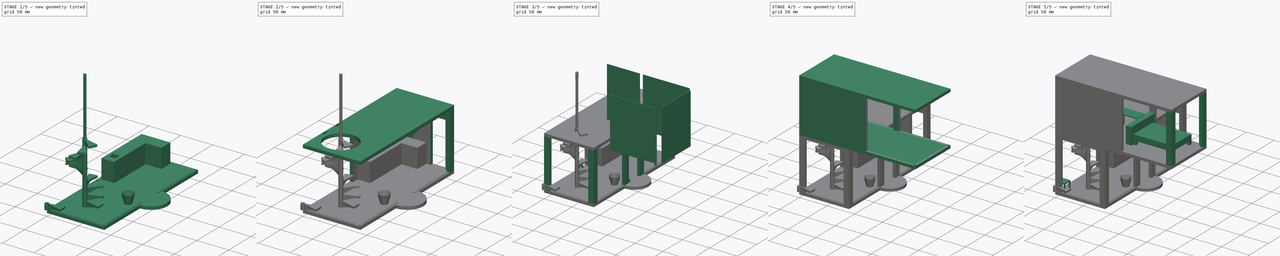
[diagram: build sequence overview — one tinted view per stage of 5, left to right]
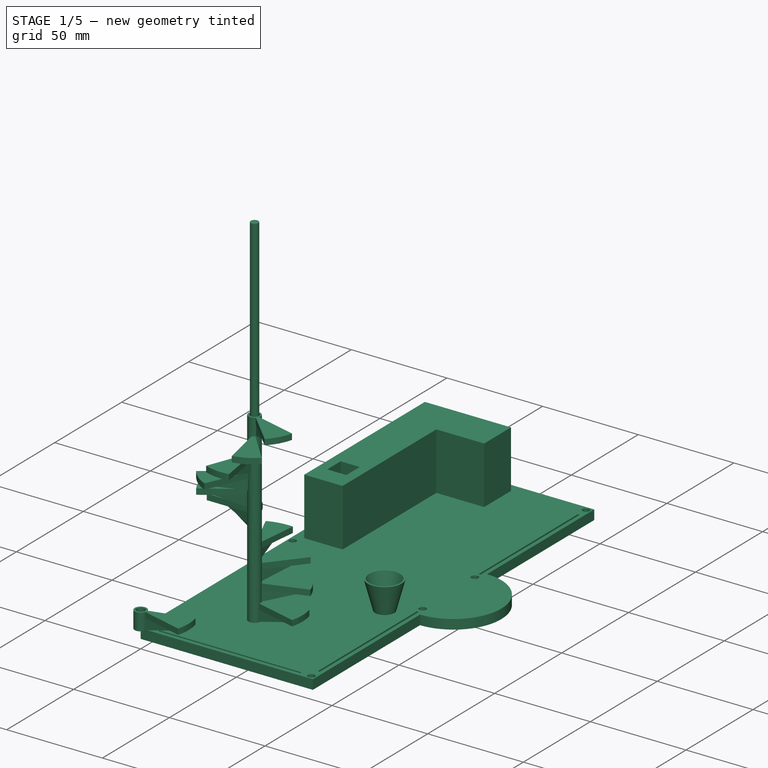
[diagram: stage 1 of 5 — iso view after this stage's code; geometry added in this stage tinted green]
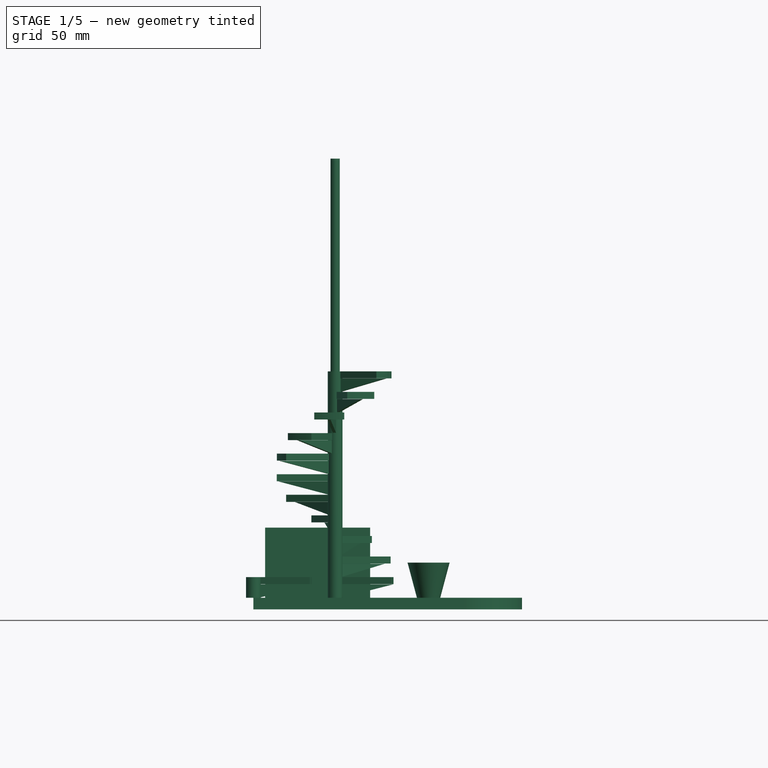
[diagram: stage 1 of 5 — front view after this stage's code; geometry added in this stage tinted green]
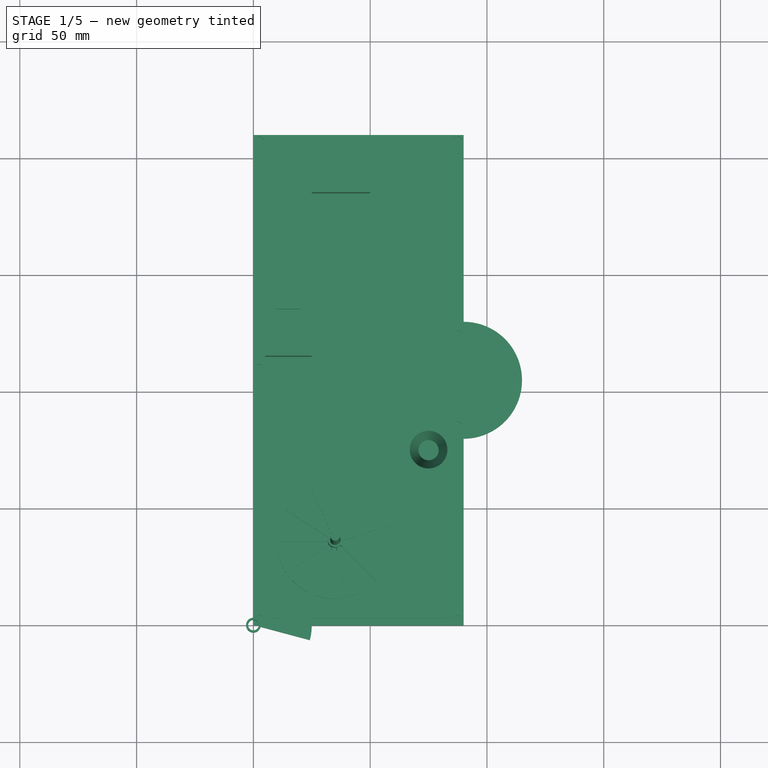
[diagram: stage 1 of 5 — top view after this stage's code; geometry added in this stage tinted green]
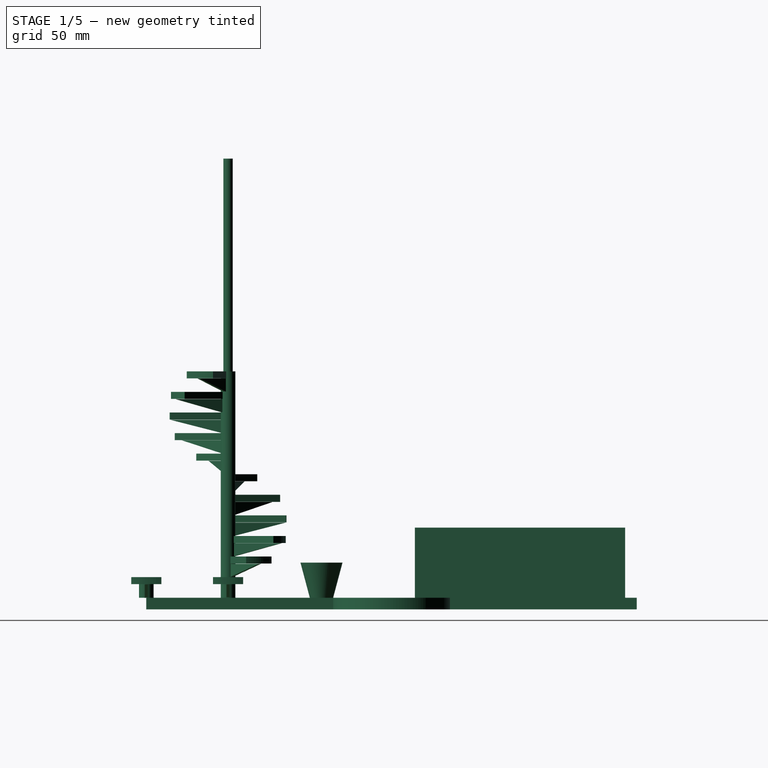
[diagram: stage 1 of 5 — right view after this stage's code; geometry added in this stage tinted green]
FCSTD DOCUMENT  (FreeCAD 0.15R4671 (Git))
Label: Casa Domotica
License: CreativeCommons Attribution-ShareAlike
LicenseURL: http://creativecommons.org/licenses/by-sa/4.0/
objects: Part::Box×54, Part::Feature×35, Part::Cut×29, Part::MultiFuse×19, Part::Cylinder×13, App::DocumentObjectGroup×6, Part::FeaturePython×5, Part::Offset×2, Part::Fillet×1, Part::Cone×1, Part::Thickness×1, Sketcher::SketchObject×1, PartDesign::Pad×1
note: 163 computed .brp shape members not serialized (recipe doc carries the construction recipe); baked Part::Feature solids carry a one-line shape summary decoded from their .brp

FEATURE [App::DocumentObjectGroup] Grupo  label="Mobiliario dormitorio"
  Group = -> [Fusion003,Cut002,Fusion004,Fusion006,Fusion005]
FEATURE [Part::Box] Box028  label="suelo macizo conteiner 20"001"
  Height = 5
  Length = 90
  Placement = pos=(0,0,-5) rot=(0,0,1;0rad)
  Width = 210
FEATURE [Part::Feature] Offset016  label="Vaciado conector 015"
  Placement = pos=(2.5,2.5,-4) rot=(0,0,1;0rad)
  shape: bbox 3.602 x 3.602 x 8.602 mm, 3 faces (baked)
FEATURE [Part::Feature] Offset017  label="Vaciado conector 016"
  Placement = pos=(87.5,2.5,-4) rot=(0,0,1;0rad)
  shape: bbox 3.602 x 3.602 x 8.602 mm, 3 faces (baked)
FEATURE [Part::Feature] Offset018  label="Vaciado conector 017"
  Placement = pos=(2.5,2.5,83) rot=(0,0,1;0rad)
  shape: bbox 3.602 x 3.602 x 8.602 mm, 3 faces (baked)
FEATURE [Part::Feature] Offset019  label="Vaciado conector 018"
  Placement = pos=(87.5,2.5,83) rot=(0,0,1;0rad)
  shape: bbox 3.602 x 3.602 x 8.602 mm, 3 faces (baked)
FEATURE [Part::Feature] Offset020  label="Vaciado conector 019"
  Placement = pos=(87.5,85.5,-4) rot=(0,0,1;0rad)
  shape: bbox 3.602 x 3.602 x 8.602 mm, 3 faces (baked)
FEATURE [Part::Feature] Offset021  label="Vaciado conector 020"
  Placement = pos=(87.5,85.5,83) rot=(0,0,1;0rad)
  shape: bbox 3.602 x 3.602 x 8.602 mm, 3 faces (baked)
FEATURE [Part::Feature] Offset022  label="Vaciado conector 021"
  Placement = pos=(87.5,124.5,-4) rot=(0,0,1;0rad)
  shape: bbox 3.602 x 3.602 x 8.602 mm, 3 faces (baked)
FEATURE [Part::Feature] Offset023  label="Vaciado conector 022"
  Placement = pos=(87.5,124.5,83) rot=(0,0,1;0rad)
  shape: bbox 3.602 x 3.602 x 8.602 mm, 3 faces (baked)
FEATURE [Part::Feature] Offset024  label="Vaciado conector 023"
  Placement = pos=(87.5,207.5,-4) rot=(0,0,1;0rad)
  shape: bbox 3.602 x 3.602 x 8.602 mm, 3 faces (baked)
FEATURE [Part::Feature] Offset025  label="Vaciado conector 024"
  Placement = pos=(87.5,207.5,83) rot=(0,0,1;0rad)
  shape: bbox 3.602 x 3.602 x 8.602 mm, 3 faces (baked)
FEATURE [Part::Feature] Offset026  label="Vaciado conector 025"
  Placement = pos=(2.5,207.5,83) rot=(0,0,1;0rad)
  shape: bbox 3.602 x 3.602 x 8.602 mm, 3 faces (baked)
FEATURE [Part::Feature] Offset027  label="Vaciado conector 026"
  Placement = pos=(2.5,207.5,-4) rot=(0,0,1;0rad)
  shape: bbox 3.602 x 3.602 x 8.602 mm, 3 faces (baked)
FEATURE [Part::Feature] Offset028  label="Vaciado conector 027"
  Placement = pos=(2.5,110,-4) rot=(0,0,1;0rad)
  shape: bbox 3.602 x 3.602 x 8.602 mm, 3 faces (baked)
FEATURE [Part::Feature] Offset029  label="Vaciado conector 028"
  Placement = pos=(2.5,110,83) rot=(0,0,1;0rad)
  shape: bbox 3.602 x 3.602 x 8.602 mm, 3 faces (baked)
FEATURE [Part::Box] Box038  label="cristal Lateral Modulo Entrada"
  Height = 91
  Length = 74
  Placement = pos=(8,2,-2) rot=(0,0,1;0rad)
  Width = 1
FEATURE [Part::Box] Box039  label="cristal Cocina"
  Height = 91
  Length = 1
  Placement = pos=(87,128,-2) rot=(0,0,1;0rad)
  Width = 74
FEATURE [Part::Box] Box042  label="Cristal Frontal Izquierdo Modulo Entrada"
  Height = 91
  Length = 1
  Placement = pos=(87,8,-2) rot=(0,0,1;0rad)
  Width = 74
FEATURE [Part::Cylinder] Cylinder009  label="Pie Puerta de Entrada Casa"
  Angle = 180
  Height = 5
  Placement = pos=(90,105,-5) rot=(0,0,-1;1.5708rad)
  Radius = 25
FEATURE [Part::MultiFuse] Fusion013  label="Suelo Modulo Entrada con Pie de Puerta"
  Shapes = -> [Box028,Cylinder009]
FEATURE [Part::MultiFuse] Fusion014  label="Union de Conectores y Cristales"
  Shapes = -> [Offset016,Offset017,Offset018,Offset019,Offset020,Offset021,Offset022,Offset023,Offset024,Offset025,Offset026,Offset027,Offset028,Offset029,Box038,Box039,Box042]
FEATURE [Part::Cut] Cut021  label="Suelo Modulo de Entrada sin soporte escalera"
  Base = -> Fusion013
  Tool = -> Fusion014
FEATURE [Part::Box] Box051  label="Mueble bajo largo Cocina"
  Height = 30
  Length = 20
  Placement = pos=(5,115,0) rot=(0,0,1;0rad)
  Width = 90
FEATURE [Part::Box] Box052  label="Mueble bajo corto Cocina"
  Height = 30
  Length = 45
  Placement = pos=(5,185,0) rot=(0,0,1;0rad)
  Width = 20
FEATURE [Part::MultiFuse] Fusion017  label="Mueble bajo cocina sin fregadero"
  Shapes = -> [Box051,Box052]
FEATURE [Part::Box] Box055  label="Hueco fregadero"
  Height = 12
  Length = 10
  Placement = pos=(10,125,20) rot=(0,0,1;0rad)
  Width = 10
FEATURE [Part::Cut] Cut025  label="Mueble bajo Cocina"
  Base = -> Fusion017
  Tool = -> Box055
FEATURE [Part::Cone] Cone  label="Cono macetero"
  Angle = 360
  Height = 15
  Placement = pos=(75,15,0) rot=(0,0,1;0rad)
  Radius1 = 5
  Radius2 = 9
FEATURE [Part::Thickness] Thickness  label="Macetero"
  Faces = -> Cone [Face2]
  Intersection = false
  Join = 2
  Mode = 0
  Placement = pos=(0,60,0) rot=(0,0,1;0rad)
  SelfIntersection = false
  Value = -0.9
FEATURE [Part::Cylinder] Cylinder010  label="Encastre Barra Central escalera caracol"
  Angle = 360
  Height = 10
  Placement = pos=(35,35,-4) rot=(0,0,1;0rad)
  Radius = 2.2
FEATURE [Part::Cut] Cut026  label="Suelo Modulo de Entrada"
  Base = -> Cut021
  Tool = -> Cylinder010
FEATURE [App::DocumentObjectGroup] Grupo002  label="Elementos constructivos Modulo Entrada"
  Group = -> [Offset015,Cut017,Cut018,Cut019,Cut023,Cut024,Cut026]
FEATURE [Part::Cylinder] Cylinder011  label="Peldaño macizo"
  Angle = 30
  Height = 3
  Placement = pos=(0,0,5.8181) rot=(0,0,-1;0.261799rad)
  Radius = 25
FEATURE [Part::Cylinder] Cylinder012  label="Exterior  cilindro central"
  Angle = 360
  Height = 8.8181
  Radius = 3.15
FEATURE [Sketcher::SketchObject] Sketch  label="perfil soporte angular"
  Placement = pos=(2.12,0.675,0) rot=(1,0,0;1.5708rad)
  sketch-geometry (3):
    g0: LineSegment StartX=0 StartY=-0.0840877 StartZ=0 EndX=22.85 EndY=5.73401 EndZ=0
    g1: LineSegment StartX=22.85 StartY=5.73401 StartZ=0 EndX=0 EndY=5.73401 EndZ=0
    g2: LineSegment StartX=0 StartY=5.73401 StartZ=0 EndX=0 EndY=-0.0840877 EndZ=0
  constraints (7):
    c: Coincident(g0,g1)
    c: Coincident(g1,g2)
    c: Coincident(g2,g0)
    c: Vertical(g2)
    c: Horizontal(g1)
    c: Distance(g2) = 5.8181
    c: DistanceX(g1) = -22.85
FEATURE [PartDesign::Pad] Pad  label="Refuerzo angular peldaño"
  Length = 1.35
  Length2 = 100
  Placement = pos=(2.12,0.675,0) rot=(1,0,0;1.5708rad)
  Sketch = -> Sketch
  Type = 0
FEATURE [Part::MultiFuse] Fusion019  label="Peldaño master sin paso eje central"
  Shapes = -> [Cylinder011,Cylinder012,Pad]
FEATURE [Part::Cylinder] Cylinder013  label="Hueco central paso barra escalera"
  Angle = 360
  Height = 11
  Placement = pos=(0,0,-1) rot=(0,0,1;0rad)
  Radius = 2.25
FEATURE [Part::Cut] Cut027  label="Master Peldaño Escalera de Caracol"
  Base = -> Fusion019
  Tool = -> Cylinder013
FEATURE [Part::Cylinder] Cylinder014  label="Barra Central Escalera Caracol"
  Angle = 360
  Height = 192
  Placement = pos=(35,35,-4) rot=(0,0,1;0rad)
  Radius = 2
FEATURE [Part::Feature] Cut028  label="Peldaño Escalera de Caracol"
  shape: bbox 28.15 x 12.94 x 8.895 mm, 15 faces (baked)
FEATURE [Part::FeaturePython] Array004  label="Peldaños Escalera"  # Draft array (typed FeaturePython)
  Angle = 330
  ArrayType = 1
  Axis = (0,0,1)
  Base = -> Cut028
  Center = (0,0,0)
  Fuse = false
  IntervalAxis = (0,0,8.81)
  IntervalX = (1,0,0)
  IntervalY = (0,1,0)
  IntervalZ = (0,0,0)
  NumberPolar = 11
  NumberX = 2
  NumberY = 2
  NumberZ = 1
  Placement = pos=(35,35,0) rot=(0,0,1;0rad)
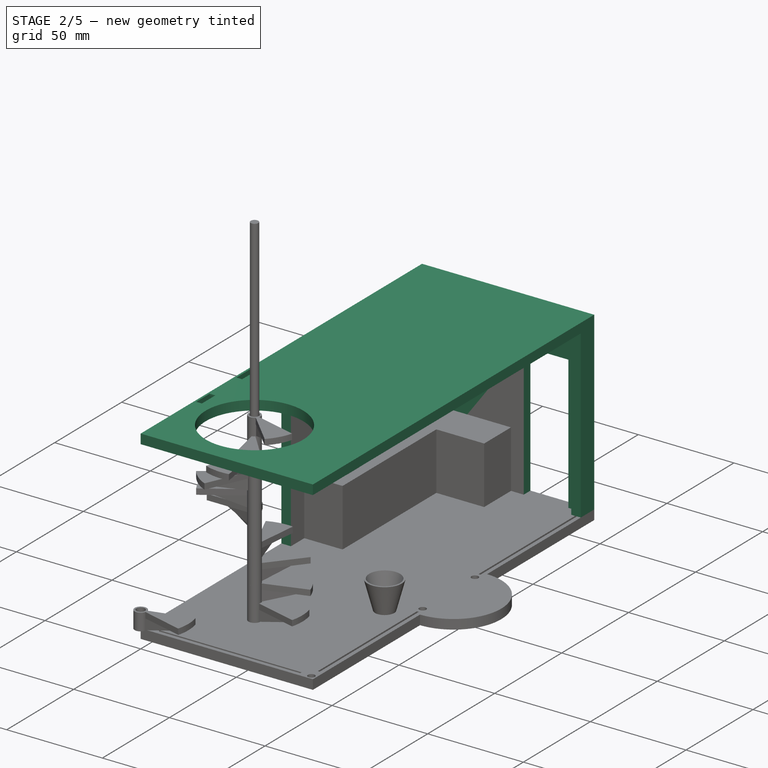
[diagram: stage 2 of 5 — iso view after this stage's code; geometry added in this stage tinted green]
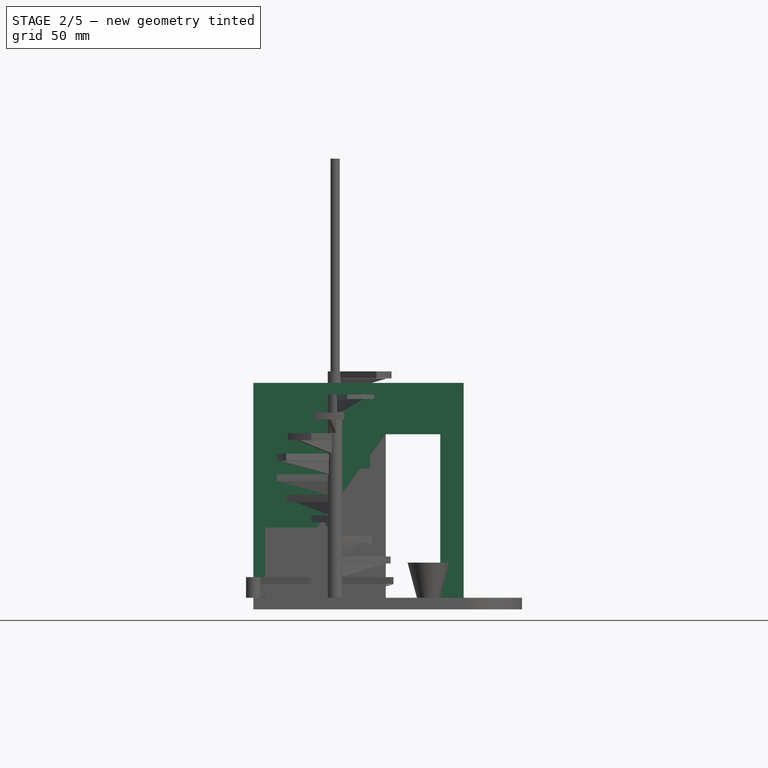
[diagram: stage 2 of 5 — front view after this stage's code; geometry added in this stage tinted green]
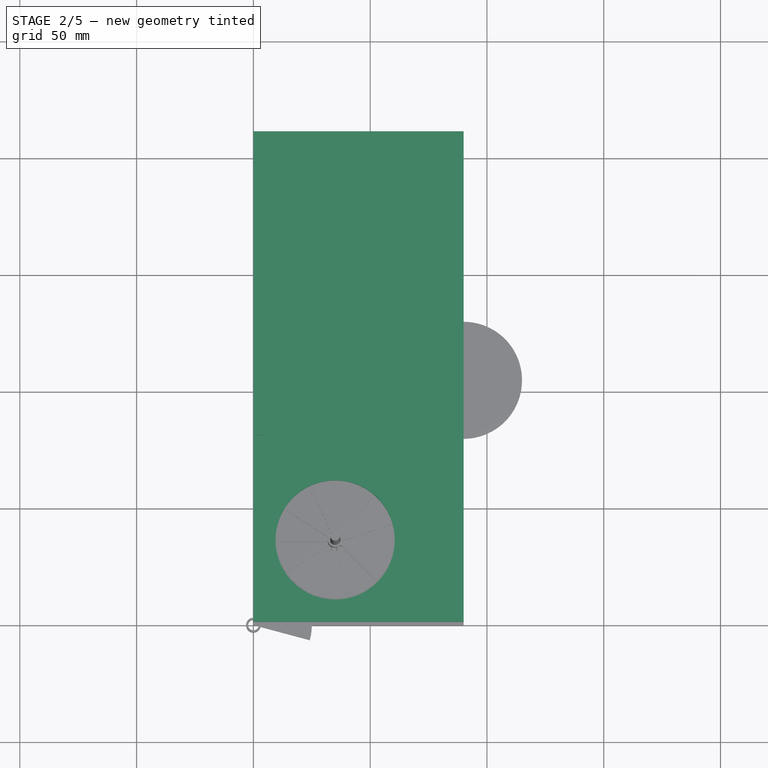
[diagram: stage 2 of 5 — top view after this stage's code; geometry added in this stage tinted green]
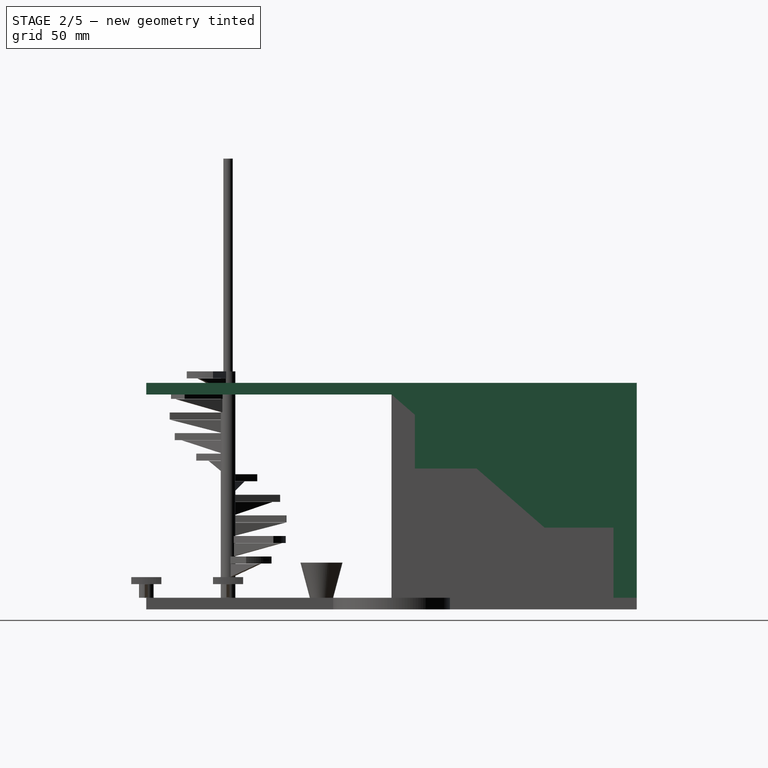
[diagram: stage 2 of 5 — right view after this stage's code; geometry added in this stage tinted green]
FEATURE [Part::Box] Box029  label="Techo macizo conteiner 20"001"
  Height = 5
  Length = 90
  Placement = pos=(0,0,87) rot=(0,0,1;0rad)
  Width = 210
FEATURE [Part::Cylinder] Cylinder006  label="hueco escalera caracol001"
  Angle = 360
  Height = 10
  Placement = pos=(35,35,84) rot=(0,0,1;0rad)
  Radius = 25.5
FEATURE [Part::Box] Box034  label="Tabique macizo de esquina lateral Modulo Entrada"
  Height = 87
  Length = 5
  Placement = pos=(85,200,0) rot=(0,0,1;0rad)
  Width = 10
FEATURE [Part::Box] Box035  label="Tabique Modulo Entrada lindante con Garaje"
  Height = 87
  Length = 80
  Placement = pos=(5,205,0) rot=(0,0,1;0rad)
  Width = 5
FEATURE [Part::Box] Box036  label="Tabique largo Modulo Entrada Zona Cocina"
  Height = 87
  Length = 5
  Placement = pos=(0,105,0) rot=(0,0,1;0rad)
  Width = 105
FEATURE [Part::MultiFuse] Fusion012  label="Pared esquinazo Modulo Entrada"
  Shapes = -> [Box034,Box035,Box036]
FEATURE [Part::Box] Box037  label="Hueco puerta paso solarium001"
  Height = 70
  Length = 23.3333
  Placement = pos=(56.6667,203,0) rot=(0,0,1;0rad)
  Width = 10
FEATURE [Part::Feature] Cylinder008  label="Hueco Techo Led escritorio001"
  Placement = pos=(45,157.5,81) rot=(0,0,1;0rad)
  shape: bbox 4 x 4 x 10 mm, 3 faces (baked)
FEATURE [Part::Cut] Cut014  label="Pared esquinazo Modulo Entrada con puerta paso a Garaje"
  Base = -> Fusion012
  Tool = -> Box037
FEATURE [Part::Cut] Cut016  label="Techo Modulo Entrada con hueco escalera caracol"
  Base = -> Box029
  Tool = -> Cylinder006
FEATURE [Part::Box] Box043  label="Roza bajante Dormitorio Cables Techo"
  Height = 10
  Length = 3
  Placement = pos=(1,40,88) rot=(0,0,1;0rad)
  Width = 10
FEATURE [Part::Box] Box044  label="Roza bajante Dormitorio Cables Porche"
  Height = 10
  Length = 3
  Placement = pos=(1,70,88) rot=(0,0,1;0rad)
  Width = 10
FEATURE [Part::Box] Box045  label="Roza Union Bajantes Dormitorio"
  Height = 3
  Length = 3
  Placement = pos=(1,45,88) rot=(0,0,1;0rad)
  Width = 30
FEATURE [Part::Box] Box046  label="Roza Techo eje X Led Cocina"
  Height = 3
  Length = 54
  Placement = pos=(1,70,88) rot=(0,0,1;0rad)
  Width = 10
FEATURE [Part::Box] Box047  label="Roza Techo eje Y Led Cocina"
  Height = 3
  Length = 10
  Placement = pos=(45,70,88) rot=(0,0,1;0rad)
  Width = 97.5
FEATURE [Part::Box] Box048  label="Roza vertical muro de esquina"
  Height = 91
  Length = 3
  Placement = pos=(1,157.5,0) rot=(0,0,1;0rad)
  Width = 10
FEATURE [Part::Box] Box049  label="Salida Roza vertical hacia alojamiento placa y bateria"
  Height = 3
  Length = 10
  Placement = pos=(-6,157.5,0) rot=(0,0,1;0rad)
  Width = 10
FEATURE [Part::Box] Box050  label="Roza Techo eje X union Muro Vertical"
  Height = 3
  Length = 54
  Placement = pos=(1,157.5,88) rot=(0,0,1;0rad)
  Width = 10
FEATURE [Part::MultiFuse] Fusion015  label="Roza del techo sin redondeos ni hueco led"
  Shapes = -> [Box043,Box044,Box045,Box046,Box047,Box048,Box049,Box050]
FEATURE [Part::Fillet] Fillet  label="Roza techo con redondeos"
  Base = -> Fusion015
  Edges = 4 edges: [Edge2 r=10,Edge4 r=10,Edge27 r=20,Edge82 r=20]
FEATURE [Part::MultiFuse] Fusion016  label="Roza Techo Modulo Entrada"
  Shapes = -> [Fillet,Cylinder008]
FEATURE [Part::Cut] Cut022  label="Techo Modulo Central con roza cables"
  Base = -> Cut016
  Tool = -> Fusion016
FEATURE [Part::Cut] Cut024  label="Techo Modulo Entrada"
  Base = -> Cut022
  Tool = -> Fusion014
FEATURE [Part::Box] Box053  label="Mueble alto largo Cocina"
  Height = 31.6667
  Length = 11
  Placement = pos=(5,115,55.3333) rot=(0,0,1;0rad)
  Width = 90
FEATURE [Part::Box] Box054  label="Mueble alto corto Cocina"
  Height = 31.6667
  Length = 45
  Placement = pos=(5,194,55.3333) rot=(0,0,1;0rad)
  Width = 11
FEATURE [Part::MultiFuse] Fusion018  label="Mueble alto Cocina"
  Shapes = -> [Box053,Box054]
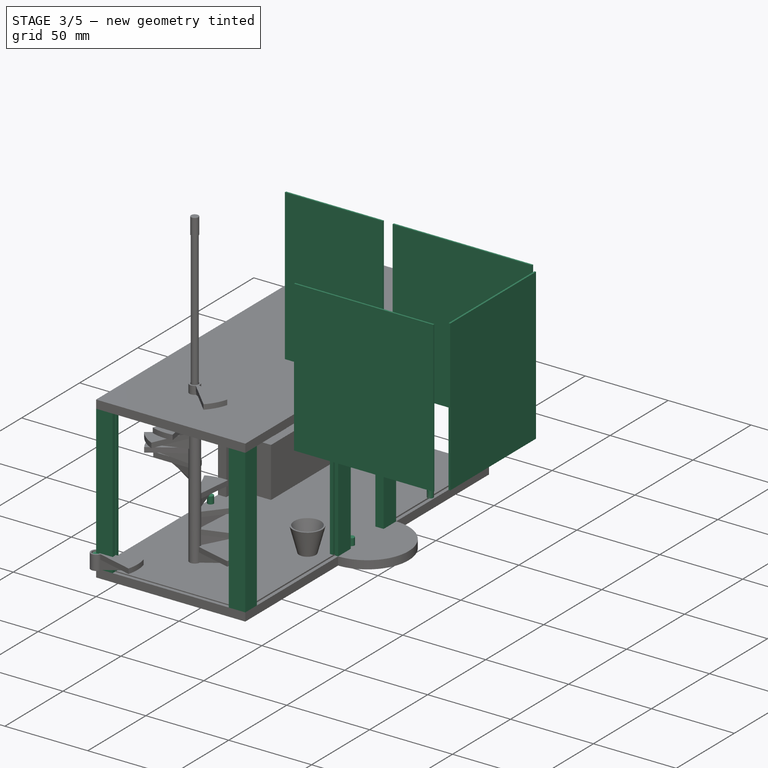
[diagram: stage 3 of 5 — iso view after this stage's code; geometry added in this stage tinted green]
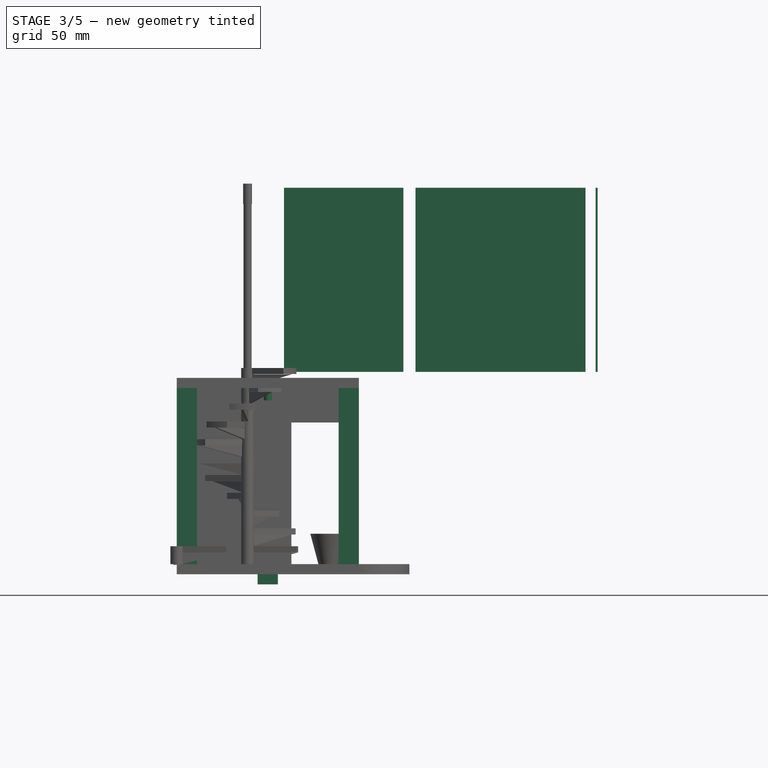
[diagram: stage 3 of 5 — front view after this stage's code; geometry added in this stage tinted green]
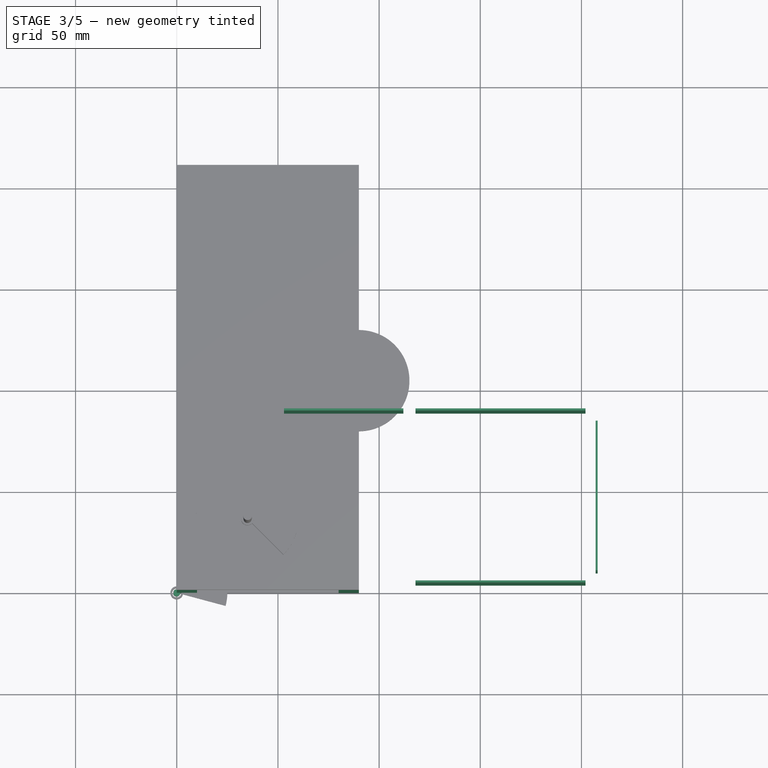
[diagram: stage 3 of 5 — top view after this stage's code; geometry added in this stage tinted green]
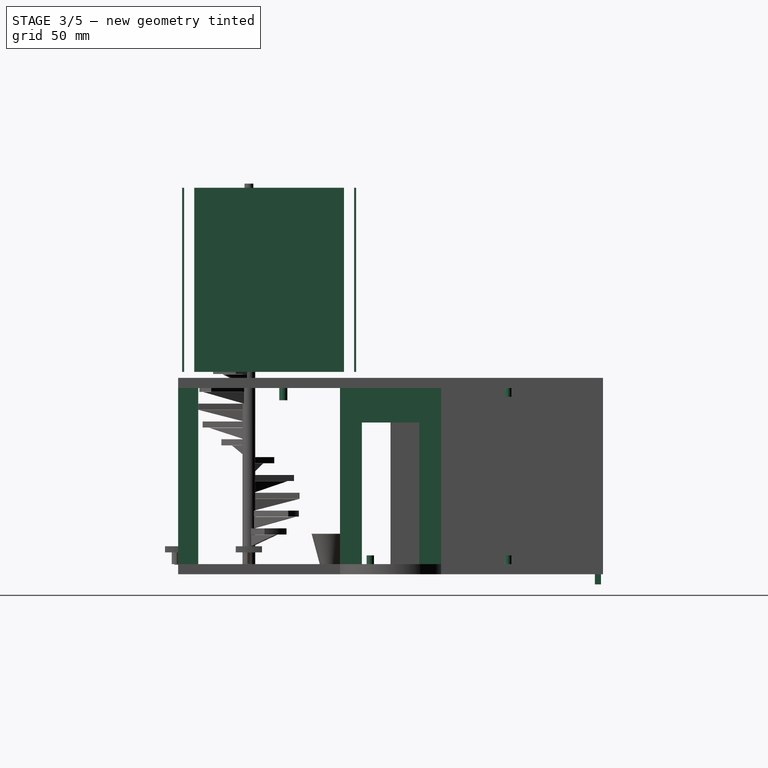
[diagram: stage 3 of 5 — right view after this stage's code; geometry added in this stage tinted green]
FEATURE [Part::Box] Box001  label="Techo macizo conteiner 20""
  Height = 5
  Length = 90
  Placement = pos=(0,0,87) rot=(0,0,1;0rad)
  Width = 210
FEATURE [Part::Feature] Offset001  label="Vaciado conector 1"
  Placement = pos=(2.5,2.5,-4) rot=(0,0,1;0rad)
  shape: bbox 3.602 x 3.602 x 8.602 mm, 3 faces (baked)
FEATURE [Part::Feature] Offset002  label="Vaciado conector 2"
  Placement = pos=(87.5,2.5,-4) rot=(0,0,1;0rad)
  shape: bbox 3.602 x 3.602 x 8.602 mm, 3 faces (baked)
FEATURE [Part::Feature] Offset003  label="Vaciado conector 3"
  Placement = pos=(2.5,2.5,83) rot=(0,0,1;0rad)
  shape: bbox 3.602 x 3.602 x 8.602 mm, 3 faces (baked)
FEATURE [Part::Feature] Offset004  label="Vaciado conector 4"
  Placement = pos=(87.5,2.5,83) rot=(0,0,1;0rad)
  shape: bbox 3.602 x 3.602 x 8.602 mm, 3 faces (baked)
FEATURE [Part::Feature] Offset005  label="Vaciado conector 5"
  Placement = pos=(87.5,95,-4) rot=(0,0,1;0rad)
  shape: bbox 3.602 x 3.602 x 8.602 mm, 3 faces (baked)
FEATURE [Part::Feature] Offset006  label="Vaciado conector 6"
  Placement = pos=(87.5,95,83) rot=(0,0,1;0rad)
  shape: bbox 3.602 x 3.602 x 8.602 mm, 3 faces (baked)
FEATURE [Part::Feature] Offset007  label="Vaciado conector 7"
  Placement = pos=(87.5,163,-4) rot=(0,0,1;0rad)
  shape: bbox 3.602 x 3.602 x 8.602 mm, 3 faces (baked)
FEATURE [Part::Feature] Offset008  label="Vaciado conector 8"
  Placement = pos=(87.5,163,83) rot=(0,0,1;0rad)
  shape: bbox 3.602 x 3.602 x 8.602 mm, 3 faces (baked)
FEATURE [Part::Feature] Offset009  label="Vaciado conector 9"
  Placement = pos=(87.5,207.5,-4) rot=(0,0,1;0rad)
  shape: bbox 3.602 x 3.602 x 8.602 mm, 3 faces (baked)
FEATURE [Part::Feature] Offset010  label="Vaciado conector 10"
  Placement = pos=(87.5,207.5,83) rot=(0,0,1;0rad)
  shape: bbox 3.602 x 3.602 x 8.602 mm, 3 faces (baked)
FEATURE [Part::Feature] Offset011  label="Vaciado conector 11"
  Placement = pos=(2.5,207.5,83) rot=(0,0,1;0rad)
  shape: bbox 3.602 x 3.602 x 8.602 mm, 3 faces (baked)
FEATURE [Part::Feature] Offset012  label="Vaciado conector 12"
  Placement = pos=(2.5,207.5,-4) rot=(0,0,1;0rad)
  shape: bbox 3.602 x 3.602 x 8.602 mm, 3 faces (baked)
FEATURE [Part::Feature] Offset013  label="Vaciado conector 13"
  Placement = pos=(2.5,95,-4) rot=(0,0,1;0rad)
  shape: bbox 3.602 x 3.602 x 8.602 mm, 3 faces (baked)
FEATURE [Part::Feature] Offset014  label="Vaciado conector 14"
  Placement = pos=(2.5,95,83) rot=(0,0,1;0rad)
  shape: bbox 3.602 x 3.602 x 8.602 mm, 3 faces (baked)
FEATURE [Part::Box] Box019  label="cristal frontal"
  Height = 91
  Length = 74
  Placement = pos=(208,8,95) rot=(0,0,1;1.5708rad)
  Width = 1
FEATURE [Part::Box] Box020  label="cristal lateral izquierdo"
  Height = 91
  Length = 1
  Placement = pos=(202,2,95) rot=(0,0,1;1.5708rad)
  Width = 84
FEATURE [Part::Feature] Box021  label="cristal lateral derecho cama"
  Placement = pos=(202,87,95) rot=(0,0,1;1.5708rad)
  shape: bbox 84 x 1 x 91 mm, 6 faces (baked)
FEATURE [Part::Box] Box022  label="cristal escritorio"
  Height = 91
  Length = 1
  Placement = pos=(112,87,95) rot=(0,0,1;1.5708rad)
  Width = 59
FEATURE [Part::MultiFuse] Fusion007  label="Union Cristales y conectores"
  Shapes = -> [Box019,Box020,Box021,Box022,Offset014,Offset013,Offset012,Offset011,Offset010,Offset009,Offset008,Offset007,Offset006,Offset005,Offset004,Offset003,Offset002,Offset001]
FEATURE [Part::Box] Box023  label="Roza cables techo"
  Height = 3
  Length = 10
  Placement = pos=(40,50,88) rot=(0,0,1;0rad)
  Width = 159
FEATURE [Part::Cylinder] Cylinder003  label="Hueco Techo Led cama"
  Angle = 360
  Height = 10
  Placement = pos=(45,52,81) rot=(0,0,1;0rad)
  Radius = 2
FEATURE [Part::Feature] Cylinder004  label="Hueco Techo Led escritorio"
  Placement = pos=(45,127,81) rot=(0,0,1;0rad)
  shape: bbox 4 x 4 x 10 mm, 3 faces (baked)
FEATURE [Part::Box] Box024  label="Roza muro vertical "
  Height = 101
  Length = 10
  Placement = pos=(40,206,-10) rot=(0,0,1;0rad)
  Width = 3
FEATURE [Part::MultiFuse] Fusion008  label="Roza techo dormitorio"
  Shapes = -> [Box023,Cylinder003,Cylinder004,Box024]
FEATURE [Part::Box] Box030  label="larguero vertical esquina 1_003"
  Height = 87
  Length = 10
  Width = 5
FEATURE [Part::Box] Box031  label="larguero vertical esquina 1_004"
  Height = 87
  Length = 5
  Width = 10
FEATURE [Part::MultiFuse] Fusion010  label="Larguero esquina 1 Modulo Entrada"
  Shapes = -> [Box030,Box031]
FEATURE [Part::Box] Box032  label="larguero vertical esquina 2_003"
  Height = 87
  Length = 10
  Placement = pos=(80,0,0) rot=(0,0,1;0rad)
  Width = 5
FEATURE [Part::Box] Box033  label="larguero vertical esquina 2_004"
  Height = 87
  Length = 5
  Placement = pos=(85,0,0) rot=(0,0,1;0rad)
  Width = 10
FEATURE [Part::MultiFuse] Fusion011  label="Larguero esquina 2 Modulo Entrada"
  Shapes = -> [Box032,Box033]
FEATURE [Part::Cylinder] Cylinder007  label="conector master001"
  Angle = 360
  Height = 8
  Radius = 1.5
FEATURE [Part::Offset] Offset015  label="Offset conector master001"
  Fill = false
  Intersection = false
  Join = 2
  Mode = 1
  SelfIntersection = false
  Source = -> Cylinder007
  Value = 0.3
FEATURE [Part::Box] Box040  label="Puerta Principal de entrada a la casa"
  Height = 70
  Length = 10
  Placement = pos=(85,90.8333,0) rot=(0,0,1;0rad)
  Width = 28.3333
FEATURE [Part::Box] Box041  label="Tabique central de entrada a la casa"
  Height = 87
  Length = 5
  Placement = pos=(85,80,0) rot=(0,0,1;0rad)
  Width = 50
FEATURE [Part::Cut] Cut015  label="Tabique Entrada  con hueco puerta entrada"
  Base = -> Box041
  Tool = -> Box040
FEATURE [Part::Cut] Cut017  label="Larguero 1 Esquina Modulo Entrada"
  Base = -> Fusion010
  Tool = -> Fusion014
FEATURE [Part::Cut] Cut018  label="Larguero 2 Esquina Modulo Entrada"
  Base = -> Fusion011
  Tool = -> Fusion014
FEATURE [Part::Cut] Cut019  label="Pared con la Puerta de Entrada a la casa"
  Base = -> Cut015
  Tool = -> Fusion014
FEATURE [Part::Cut] Cut020  label="Pared Esquina con puerta paso a Garaje"
  Base = -> Cut014
  Tool = -> Fusion014
FEATURE [Part::Cut] Cut023  label="Pared Modulo Entrada medianera con Garaje"
  Base = -> Cut020
  Tool = -> Fusion016
FEATURE [App::DocumentObjectGroup] Grupo003  label="Mobiliario Modulo Entrada"
  Group = -> [Fusion018,Cut025,Thickness,Cylinder014,Array004,Cut027]
FEATURE [Part::Cylinder] Cylinder015  label="Hueco encastre superior barra escalera"
  Angle = 360
  Height = 10
  Placement = pos=(35,35,178) rot=(0,0,1;0rad)
  Radius = 2.2
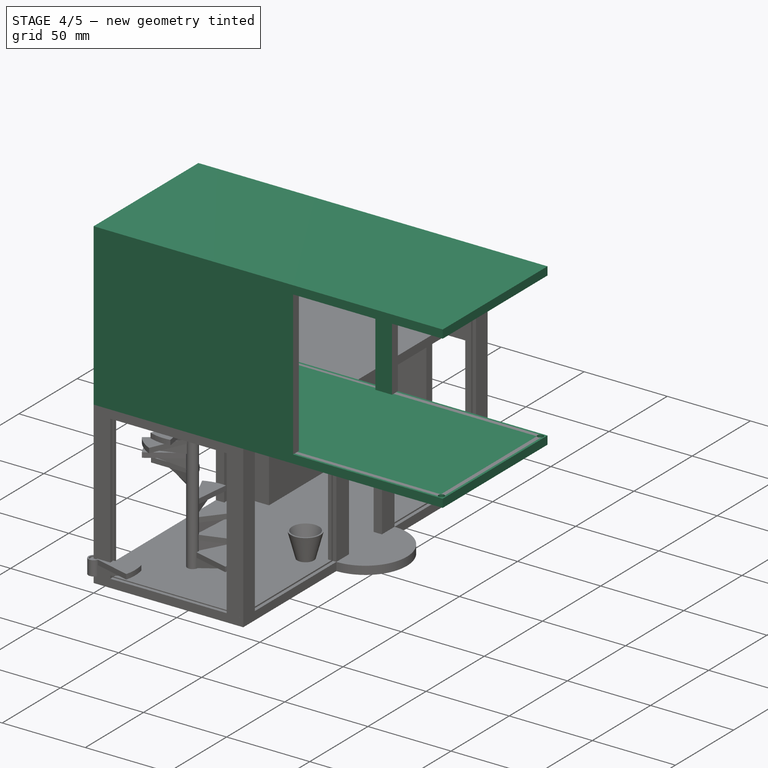
[diagram: stage 4 of 5 — iso view after this stage's code; geometry added in this stage tinted green]
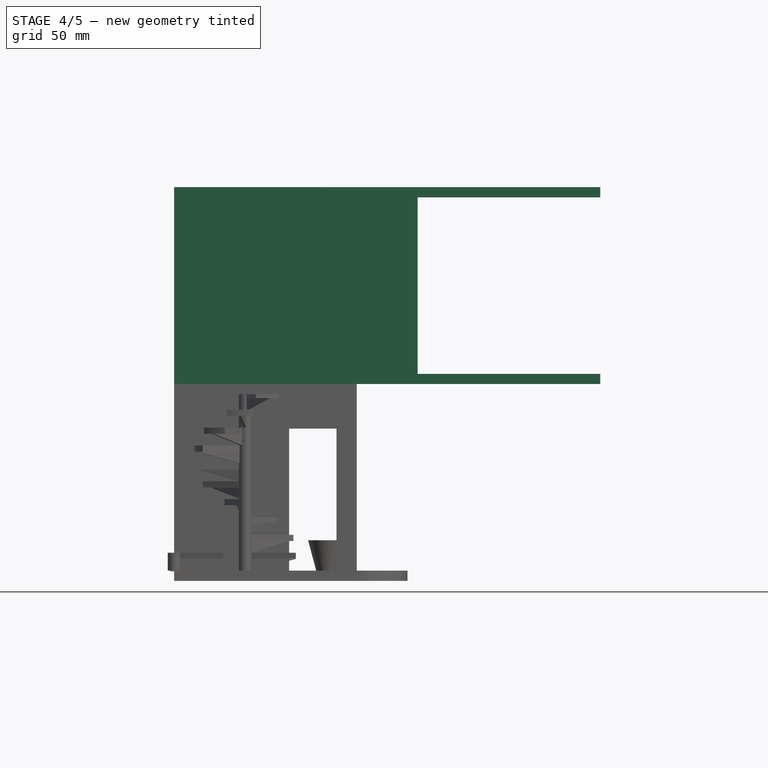
[diagram: stage 4 of 5 — front view after this stage's code; geometry added in this stage tinted green]
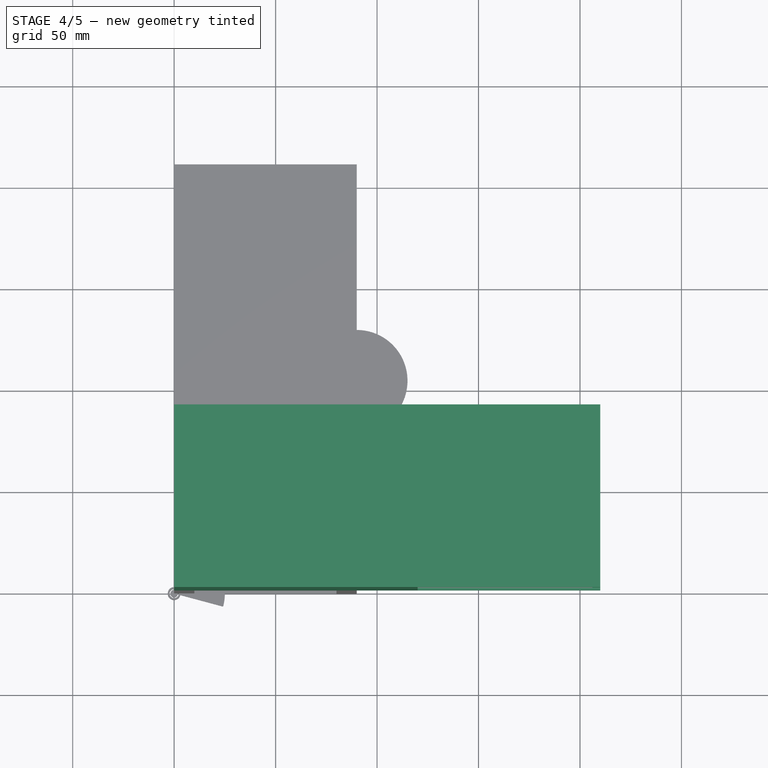
[diagram: stage 4 of 5 — top view after this stage's code; geometry added in this stage tinted green]
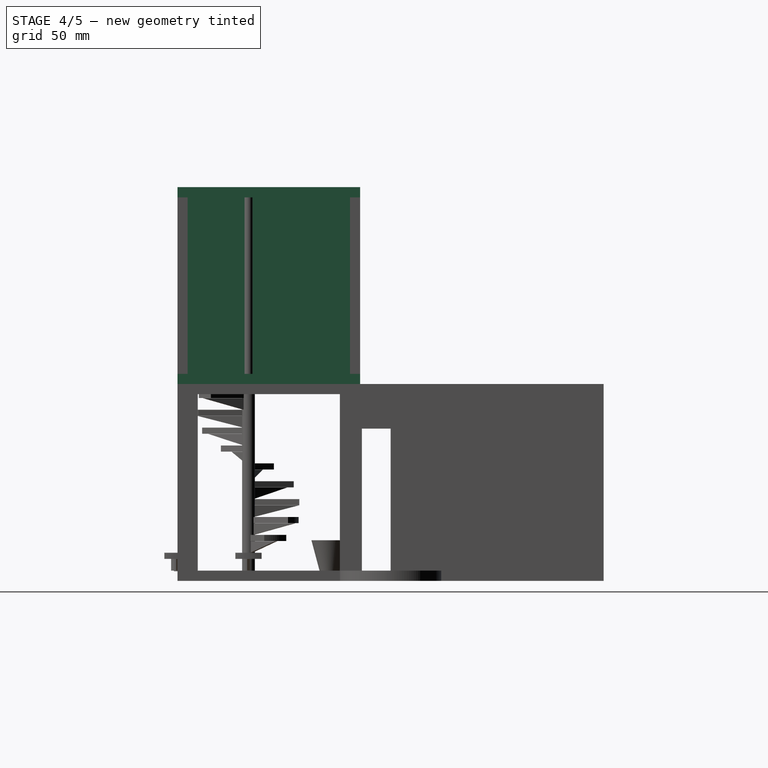
[diagram: stage 4 of 5 — right view after this stage's code; geometry added in this stage tinted green]
FEATURE [Part::Box] Box  label="suelo macizo conteiner 20""
  Height = 5
  Length = 90
  Placement = pos=(0,0,-5) rot=(0,0,1;0rad)
  Width = 210
FEATURE [Part::Box] Box004  label="larguero vertical esquina 2_1"
  Height = 87
  Length = 10
  Placement = pos=(80,0,0) rot=(0,0,1;0rad)
  Width = 5
FEATURE [Part::Box] Box005  label="larguero vertical esquina 2_2"
  Height = 87
  Length = 5
  Placement = pos=(85,0,0) rot=(0,0,1;0rad)
  Width = 10
FEATURE [Part::MultiFuse] Fusion001  label="Larguero esquina 2 dormitorio"
  Shapes = -> [Box004,Box005]
FEATURE [Part::Box] Box006  label="Columna media master dormitorio"
  Height = 87
  Length = 5
  Placement = pos=(85,90,0) rot=(0,0,1;0rad)
  Width = 10
FEATURE [Part::Cylinder] Cylinder  label="hueco escalera caracol"
  Angle = 360
  Height = 10
  Placement = pos=(35,175,-7) rot=(0,0,1;0rad)
  Radius = 25.5
FEATURE [Part::Box] Box007  label="Tabique macizo dormitorio para puerta solarium"
  Height = 87
  Length = 5
  Placement = pos=(85,155,0) rot=(0,0,1;0rad)
  Width = 55
FEATURE [Part::Box] Box008  label="Tabique trasero dormitorio"
  Height = 87
  Length = 80
  Placement = pos=(5,205,0) rot=(0,0,1;0rad)
  Width = 5
FEATURE [Part::Box] Box009  label="Tabique largo dormitorio"
  Height = 87
  Length = 5
  Placement = pos=(0,90,0) rot=(0,0,1;0rad)
  Width = 120
FEATURE [Part::MultiFuse] Fusion002  label="Pared esquinazo dormitorio"
  Shapes = -> [Box007,Box008,Box009]
FEATURE [Part::Box] Box010  label="Hueco puerta paso solarium"
  Height = 70
  Length = 10
  Placement = pos=(83,170.833,0) rot=(0,0,1;0rad)
  Width = 23.3333
FEATURE [Part::Cut] Cut  label="Pared esquinazo dormitorio + puerta solarium"
  Base = -> Fusion002
  Tool = -> Box010
FEATURE [Part::Cut] Cut001  label="suelo con hueco escalera caracol"
  Base = -> Box
  Tool = -> Cylinder
FEATURE [Part::Cut] Cut006  label="Techo container con vaciados conectores y cristales"
  Base = -> Box001
  Tool = -> Fusion007
FEATURE [Part::Cut] Cut007  label="Suelo con vaciados cristales y conectores"
  Base = -> Cut001
  Tool = -> Fusion007
FEATURE [Part::Cut] Cut008  label="Columna media dormitorio con vaciados"
  Base = -> Box006
  Placement = pos=(210,0,97) rot=(0,0,1;1.5708rad)
  Tool = -> Fusion007
FEATURE [Part::Cut] Cut009  label="Pared esquinazo dormitorio con vaciados"
  Base = -> Cut
  Tool = -> Fusion007
FEATURE [Part::Feature] Box025  label="Roza cables zona porche"
  Placement = pos=(70,50,-4) rot=(0,0,1;0rad)
  shape: bbox 10 x 159 x 3 mm, 6 faces (baked)
FEATURE [Part::Box] Box026  label="Roza cables porche angular"
  Height = 3
  Length = 30
  Placement = pos=(43,50,-4) rot=(0,0,1;0rad)
  Width = 10
FEATURE [Part::Feature] Cylinder005  label="Hueco Techo Led Zona Porche"
  Placement = pos=(45,55,-11) rot=(0,0,1;0rad)
  shape: bbox 4 x 4 x 10 mm, 3 faces (baked)
FEATURE [Part::Box] Box027  label="Roza salida cables al techo modulo central"
  Height = 10
  Length = 10
  Placement = pos=(70,206,-11) rot=(0,0,1;0rad)
  Width = 3
FEATURE [Part::MultiFuse] Fusion009  label="Roza luz zona porche exterior"
  Shapes = -> [Box025,Box026,Cylinder005,Box027]
FEATURE [Part::Cut] Cut010  label="Techo dormitorio sin encastre barra escalera"
  Base = -> Cut006
  Placement = pos=(210,0,97) rot=(0,0,1;1.5708rad)
  Tool = -> Fusion008
FEATURE [Part::Cut] Cut011  label="Paredes Esquinazo Dormitorio"
  Base = -> Cut009
  Placement = pos=(210,0,97) rot=(0,0,1;1.5708rad)
  Tool = -> Fusion008
FEATURE [Part::Cut] Cut012  label="Suelo - salida cables techo dormitorio"
  Base = -> Cut007
  Tool = -> Fusion008
FEATURE [Part::Cut] Cut013  label="Suelo Dormitorio y Techo Zona Porche"
  Base = -> Cut012
  Placement = pos=(210,0,97) rot=(0,0,1;1.5708rad)
  Tool = -> Fusion009
FEATURE [Part::Cut] Cut029  label="Techo Dormitorio"
  Base = -> Cut010
  Tool = -> Cylinder015
FEATURE [App::DocumentObjectGroup] Grupo001  label="Elementos constructivos Dormitorio"
  Group = -> [Cut013,Cut011,Cut008,Cut005,Cut004,Offset,Cut029]
FEATURE [App::DocumentObjectGroup] Grupo004  label="Dormitorio"
  Group = -> [Grupo,Grupo001]
FEATURE [App::DocumentObjectGroup] Grupo005  label="Modulo Entrada"
  Group = -> [Grupo002,Grupo003]
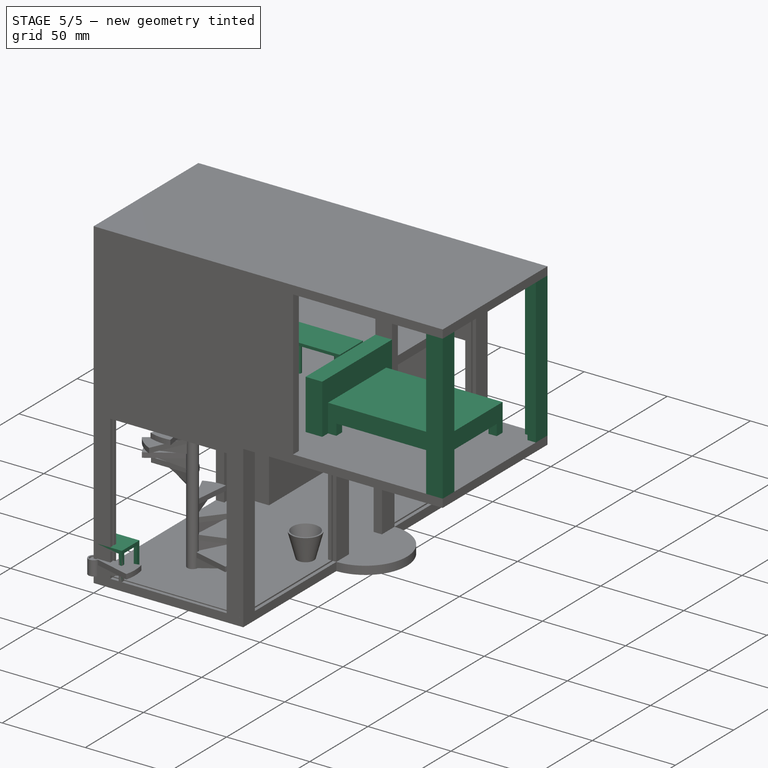
[diagram: stage 5 of 5 — iso view after this stage's code; geometry added in this stage tinted green]
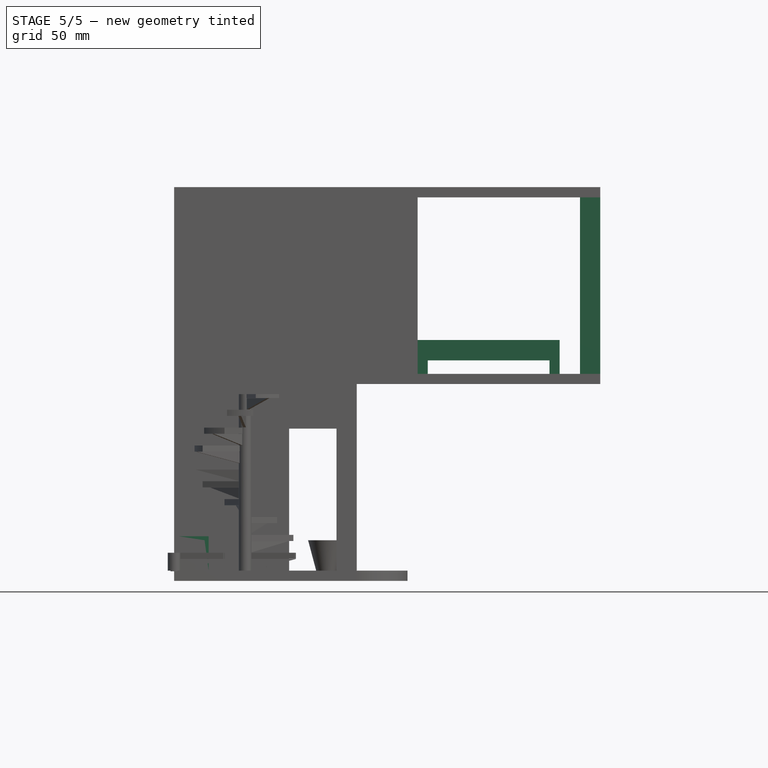
[diagram: stage 5 of 5 — front view after this stage's code; geometry added in this stage tinted green]
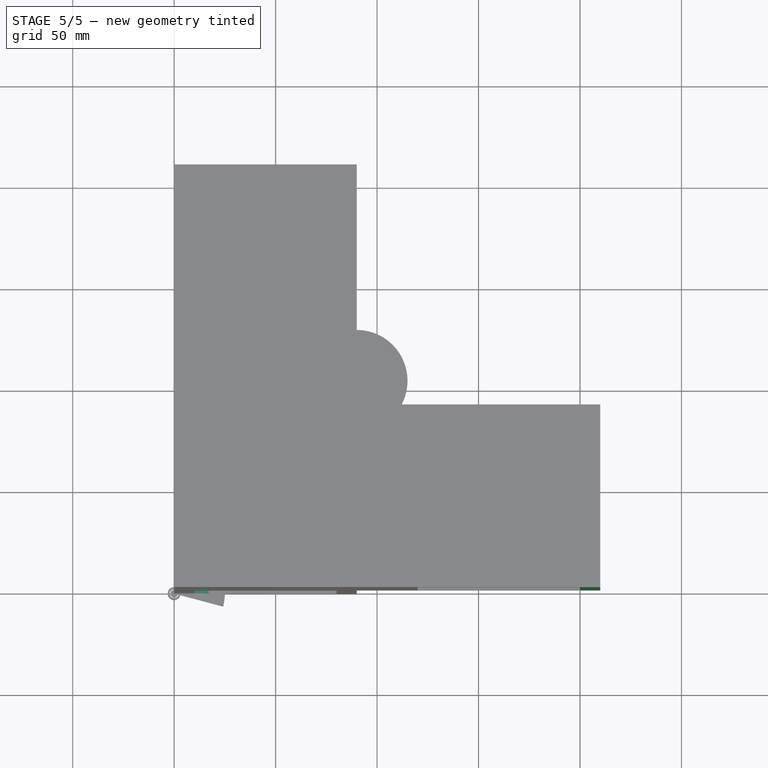
[diagram: stage 5 of 5 — top view after this stage's code; geometry added in this stage tinted green]
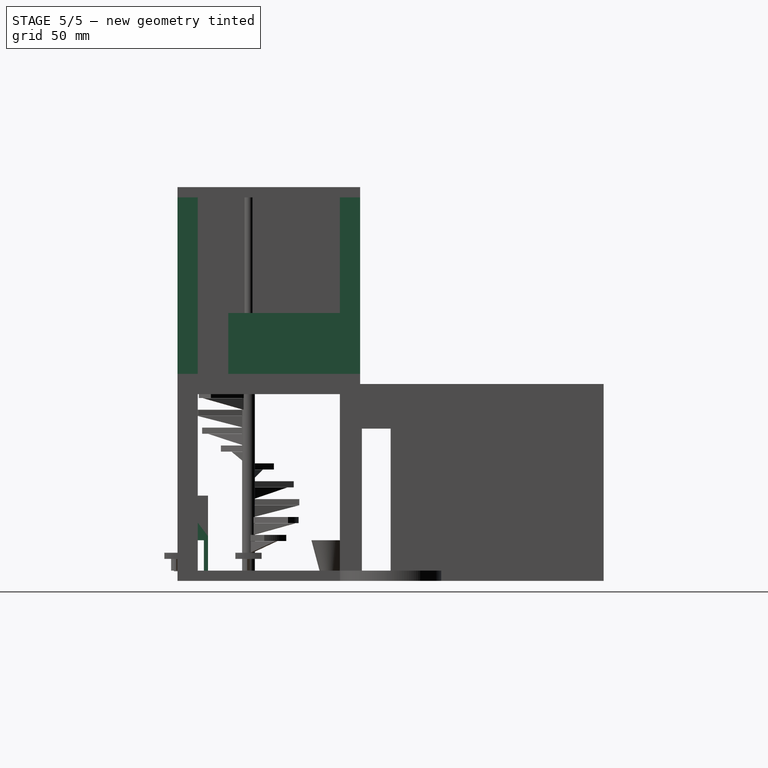
[diagram: stage 5 of 5 — right view after this stage's code; geometry added in this stage tinted green]
FEATURE [Part::Box] Box002  label="larguero vertical esquina 1_1"
  Height = 87
  Length = 10
  Width = 5
FEATURE [Part::Box] Box003  label="larguero vertical esquina 1_2"
  Height = 87
  Length = 5
  Width = 10
FEATURE [Part::MultiFuse] Fusion  label="Larguero esquina 1 dormitorio"
  Shapes = -> [Box002,Box003]
FEATURE [Part::Box] Box011  label="Base cama  150"
  Height = 10
  Length = 50
  Placement = pos=(30,20,6.66667) rot=(0,0,1;0rad)
  Width = 70
FEATURE [Part::Box] Box012  label="master pata cama "
  Height = 6.66667
  Length = 5
  Placement = pos=(30,20,0) rot=(0,0,1;0rad)
  Width = 5
FEATURE [Part::FeaturePython] Array  label="Patas de la cama"  # Draft array (typed FeaturePython)
  Angle = 360
  ArrayType = 0
  Axis = (0,0,1)
  Base = -> Box012
  Center = (0,0,0)
  Fuse = false
  IntervalAxis = (0,0,0)
  IntervalX = (45,0,0)
  IntervalY = (0,65,0)
  IntervalZ = (0,0,0)
  NumberPolar = 1
  NumberX = 2
  NumberY = 2
  NumberZ = 1
FEATURE [Part::MultiFuse] Fusion003  label="Cama 150"
  Placement = pos=(210,0,97) rot=(0,0,1;1.5708rad)
  Shapes = -> [Box011,Array]
FEATURE [Part::Box] Box013  label="Libreria baja dormitorio maciza"
  Height = 30
  Length = 60
  Placement = pos=(25,90,0) rot=(0,0,1;0rad)
  Width = 10
FEATURE [Part::Box] Box014  label="master vaciado libreria baja"
  Height = 12
  Length = 12
  Width = 10
FEATURE [Part::FeaturePython] Array001  label="Matriz huecos libreria baja"  # Draft array (typed FeaturePython)
  Angle = 360
  ArrayType = 0
  Axis = (0,0,1)
  Base = -> Box014
  Center = (0,0,0)
  Fuse = false
  IntervalAxis = (0,0,0)
  IntervalX = (14.4,0,0)
  IntervalY = (0,1,0)
  IntervalZ = (0,0,14)
  NumberPolar = 1
  NumberX = 4
  NumberY = 1
  NumberZ = 2
  Placement = pos=(27.4,91,2) rot=(0,0,1;0rad)
FEATURE [Part::Cut] Cut002  label="Libreria baja dormitorio"
  Base = -> Box013
  Placement = pos=(210,0,97) rot=(0,0,1;1.5708rad)
  Tool = -> Array001
FEATURE [Part::Box] Box015  label="Tablero mesa escritorio"
  Height = 1.66667
  Length = 20
  Placement = pos=(65,107.5,23) rot=(0,0,1;0rad)
  Width = 40
FEATURE [Part::Cylinder] Cylinder001  label="Master pata mesa escritorio"
  Angle = 360
  Height = 23
  Placement = pos=(70,112.5,0) rot=(0,0,1;0rad)
  Radius = 1.5
FEATURE [Part::FeaturePython] Array002  label="Matriz 4 patas mesa escritorio"  # Draft array (typed FeaturePython)
  Angle = 360
  ArrayType = 0
  Axis = (0,0,1)
  Base = -> Cylinder001
  Center = (0,0,0)
  Fuse = false
  IntervalAxis = (0,0,0)
  IntervalX = (10,0,0)
  IntervalY = (0,30,0)
  IntervalZ = (0,0,0)
  NumberPolar = 1
  NumberX = 2
  NumberY = 2
  NumberZ = 1
FEATURE [Part::Box] Box016  label="Exterior silla"
  Height = 22
  Length = 17
  Width = 15
FEATURE [Part::Box] Box017  label="Vaciado respaldo silla"
  Height = 25
  Length = 25
  Placement = pos=(2,-2,2) rot=(0,0,1;0rad)
  Width = 20
FEATURE [Part::Cut] Cut003  label="Respaldo + Base silla"
  Base = -> Box016
  Placement = pos=(0,0,15) rot=(0,0,1;0rad)
  Tool = -> Box017
FEATURE [Part::MultiFuse] Fusion004  label="Mesa escritorio"
  Placement = pos=(210,0,97) rot=(0,0,1;1.5708rad)
  Shapes = -> [Box015,Array002]
FEATURE [Part::Box] Box018  label="Master pata silla"
  Height = 15
  Length = 2
  Width = 2
FEATURE [Part::FeaturePython] Array003  label="Matriz 4 patas silla"  # Draft array (typed FeaturePython)
  Angle = 360
  ArrayType = 0
  Axis = (0,0,1)
  Base = -> Box018
  Center = (0,0,0)
  Fuse = false
  IntervalAxis = (0,0,0)
  IntervalX = (15,0,0)
  IntervalY = (0,13,0)
  IntervalZ = (0,0,0)
  NumberPolar = 1
  NumberX = 2
  NumberY = 2
  NumberZ = 1
FEATURE [Part::MultiFuse] Fusion005  label="Silla master"
  Shapes = -> [Cut003,Array003]
FEATURE [Part::Feature] Fusion006  label="Silla dormitorio"
  Placement = pos=(91,55,97) rot=(0,0,1;1.5708rad)
  shape: bbox 15 x 17 x 37 mm, 20 faces (baked)
FEATURE [Part::Cylinder] Cylinder002  label="conector master"
  Angle = 360
  Height = 8
  Radius = 1.5
FEATURE [Part::Offset] Offset  label="Offset conector master"
  Fill = false
  Intersection = false
  Join = 2
  Mode = 1
  SelfIntersection = false
  Source = -> Cylinder002
  Value = 0.3
FEATURE [Part::Cut] Cut004  label="Larguero dormitorio esquina 1 con vaciados"
  Base = -> Fusion
  Placement = pos=(210,0,97) rot=(0,0,1;1.5708rad)
  Tool = -> Fusion007
FEATURE [Part::Cut] Cut005  label="Larguero dormitorio esquina 2 con vaciados"
  Base = -> Fusion001
  Placement = pos=(210,0,97) rot=(0,0,1;1.5708rad)
  Tool = -> Fusion007
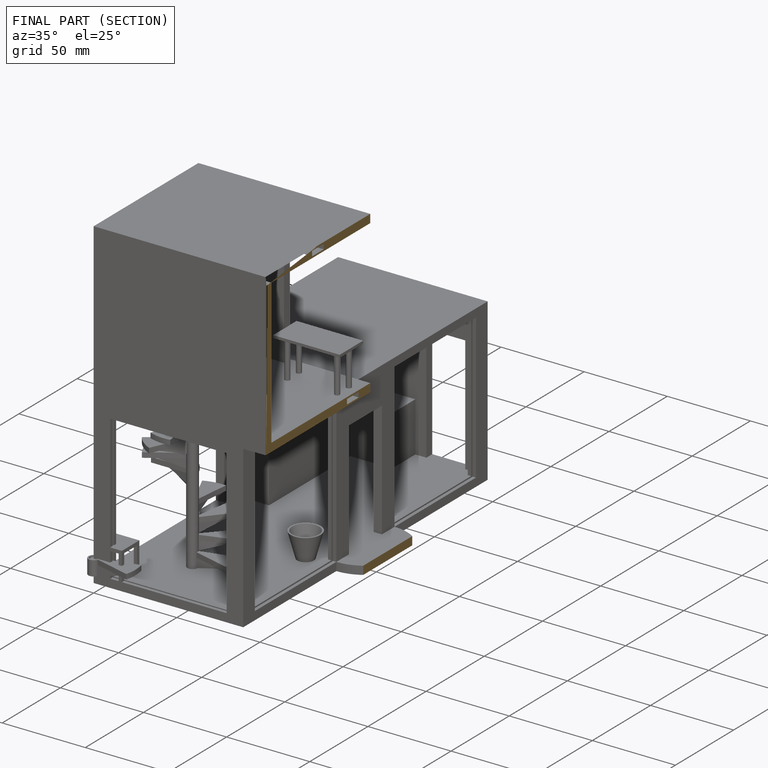
[diagram: finished part — half-section view (interior)]
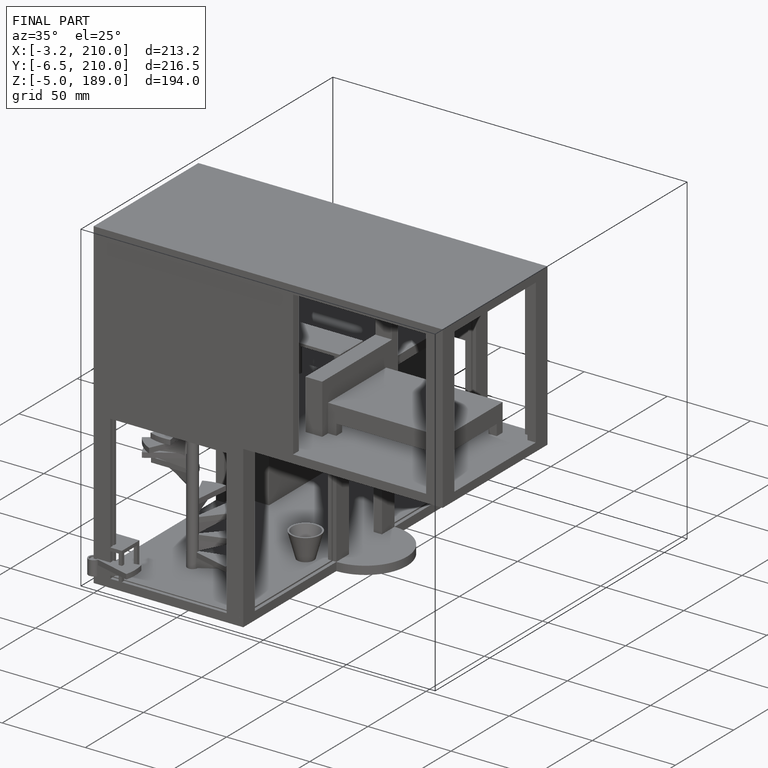
[diagram: finished part — iso view with bounding-box wireframe]
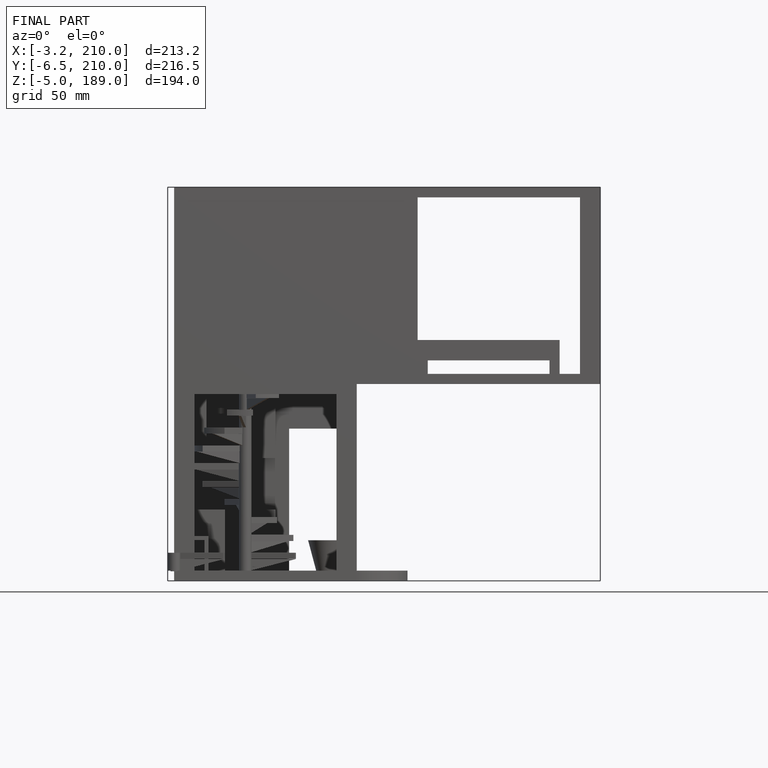
[diagram: finished part — front view with bounding-box wireframe]
